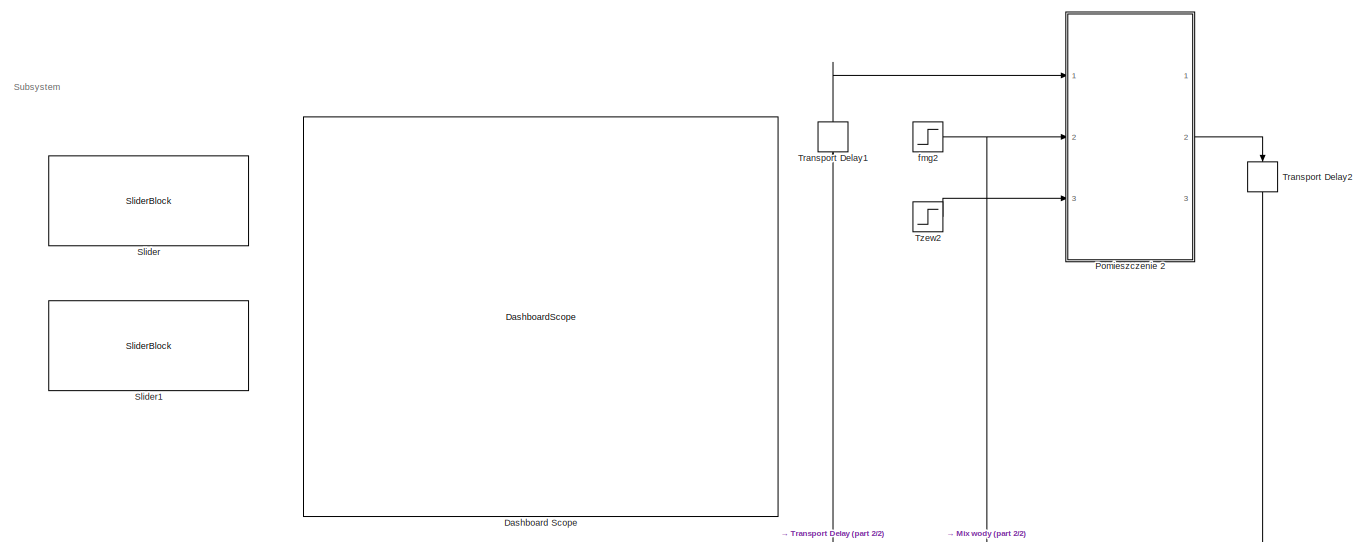
[diagram: root canvas - part 1/2, full width, top band]
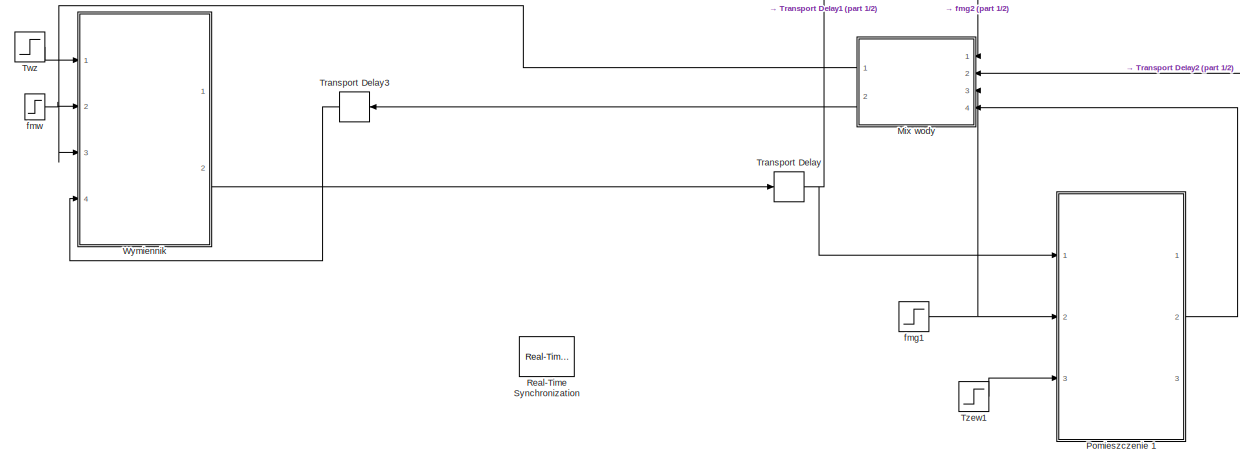
[diagram: root canvas - part 2/2, full width, bottom band]
MODEL slx_4da5ae74ee29
KIND model
CONFIG AbsTol = auto
CONFIG EnableMultiTasking = on
CONFIG FixedStep = auto
CONFIG MaxStep = auto
CONFIG MinStep = auto
CONFIG RelTol = 1e-3
CONFIG SampleTimeConstraint = Unconstrained
CONFIG Solver = ode45
CONFIG SolverName = ode45
CONFIG StartTime = 0.0
CONFIG StopTime = 10.0
BLOCK [DashboardScope] Dashboard Scope
  WebBlockId = 55
  Ymax = 50
  Ymin = 10
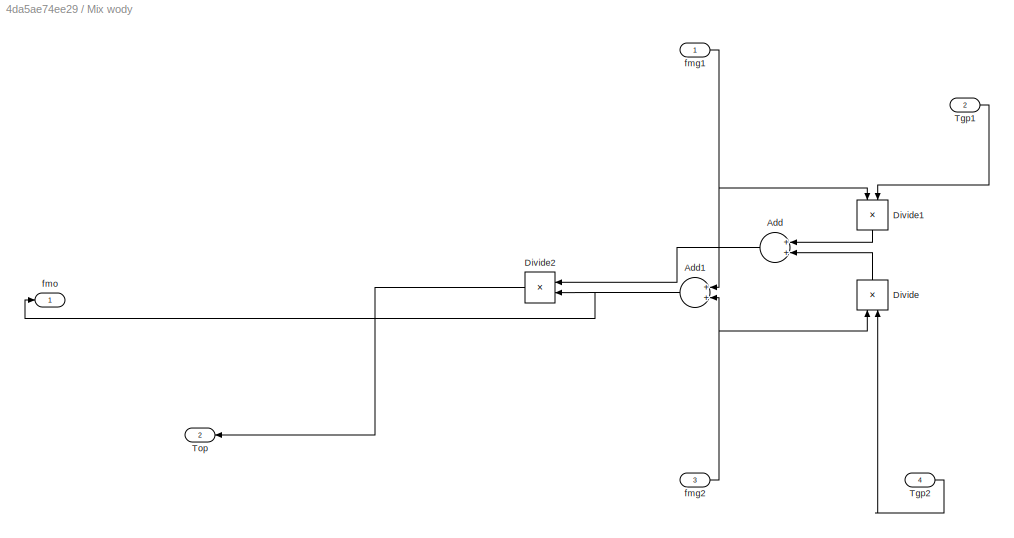
BLOCK [SubSystem] Mix wody
  Ports = [4, 2]
  RequestExecContextInheritance = off
BLOCK [Sum] Mix wody/Add
  InputSameDT = off
  OutDataTypeStr = Inherit: Inherit via internal rule
  Ports = [2, 1]
  SaturateOnIntegerOverflow = off
BLOCK [Sum] Mix wody/Add1
  InputSameDT = off
  OutDataTypeStr = Inherit: Inherit via internal rule
  Ports = [2, 1]
  SaturateOnIntegerOverflow = off
BLOCK [Product] Mix wody/Divide
  InputSameDT = off
  Inputs = **
  OutDataTypeStr = Inherit: Inherit via internal rule
  Ports = [2, 1]
  RndMeth = Floor
  SaturateOnIntegerOverflow = off
BLOCK [Product] Mix wody/Divide1
  InputSameDT = off
  Inputs = **
  OutDataTypeStr = Inherit: Inherit via internal rule
  Ports = [2, 1]
  RndMeth = Floor
  SaturateOnIntegerOverflow = off
BLOCK [Product] Mix wody/Divide2
  InputSameDT = off
  Inputs = */
  OutDataTypeStr = Inherit: Inherit via internal rule
  Ports = [2, 1]
  RndMeth = Floor
  SaturateOnIntegerOverflow = off
BLOCK [Inport] Mix wody/Tgp1
  IconDisplay = Port number
  Port = 2
BLOCK [Inport] Mix wody/Tgp2
  IconDisplay = Port number
  Port = 4
BLOCK [Outport] Mix wody/Top
  IconDisplay = Port number
  Port = 2
BLOCK [Inport] Mix wody/fmg1
  IconDisplay = Port number
BLOCK [Inport] Mix wody/fmg2
  IconDisplay = Port number
  Port = 3
BLOCK [Outport] Mix wody/fmo
  IconDisplay = Port number
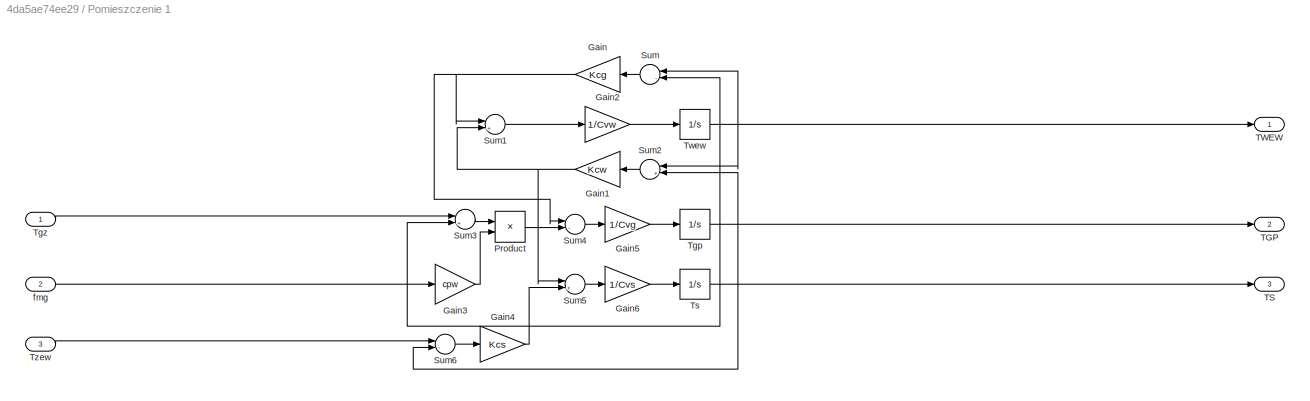
BLOCK [SubSystem] Pomieszczenie 1
  Ports = [3, 3]
  RequestExecContextInheritance = off
BLOCK [Gain] Pomieszczenie 1/Gain
  Gain = Kcg
  OutDataTypeStr = Inherit: Inherit via internal rule
  ParamDataTypeStr = Inherit: Inherit via internal rule
  SaturateOnIntegerOverflow = off
BLOCK [Gain] Pomieszczenie 1/Gain1
  Gain = Kcw
  OutDataTypeStr = Inherit: Inherit via internal rule
  ParamDataTypeStr = Inherit: Inherit via internal rule
  SaturateOnIntegerOverflow = off
BLOCK [Gain] Pomieszczenie 1/Gain2
  Gain = 1/Cvw
  OutDataTypeStr = Inherit: Inherit via internal rule
  ParamDataTypeStr = Inherit: Inherit via internal rule
  SaturateOnIntegerOverflow = off
BLOCK [Gain] Pomieszczenie 1/Gain3
  Gain = cpw
  OutDataTypeStr = Inherit: Inherit via internal rule
  ParamDataTypeStr = Inherit: Inherit via internal rule
  SaturateOnIntegerOverflow = off
BLOCK [Gain] Pomieszczenie 1/Gain4
  Gain = Kcs
  OutDataTypeStr = Inherit: Inherit via internal rule
  ParamDataTypeStr = Inherit: Inherit via internal rule
  SaturateOnIntegerOverflow = off
BLOCK [Gain] Pomieszczenie 1/Gain5
  Gain = 1/Cvg
  OutDataTypeStr = Inherit: Inherit via internal rule
  ParamDataTypeStr = Inherit: Inherit via internal rule
  SaturateOnIntegerOverflow = off
BLOCK [Gain] Pomieszczenie 1/Gain6
  Gain = 1/Cvs
  OutDataTypeStr = Inherit: Inherit via internal rule
  ParamDataTypeStr = Inherit: Inherit via internal rule
  SaturateOnIntegerOverflow = off
BLOCK [Product] Pomieszczenie 1/Product
  InputSameDT = off
  OutDataTypeStr = Inherit: Inherit via internal rule
  Ports = [2, 1]
  RndMeth = Floor
  SaturateOnIntegerOverflow = off
BLOCK [Sum] Pomieszczenie 1/Sum
  InputSameDT = off
  Inputs = |-+
  OutDataTypeStr = Inherit: Inherit via internal rule
  Ports = [2, 1]
  SaturateOnIntegerOverflow = off
BLOCK [Sum] Pomieszczenie 1/Sum1
  InputSameDT = off
  Inputs = |+-
  OutDataTypeStr = Inherit: Inherit via internal rule
  Ports = [2, 1]
  SaturateOnIntegerOverflow = off
BLOCK [Sum] Pomieszczenie 1/Sum2
  InputSameDT = off
  Inputs = |+-
  OutDataTypeStr = Inherit: Inherit via internal rule
  Ports = [2, 1]
  SaturateOnIntegerOverflow = off
BLOCK [Sum] Pomieszczenie 1/Sum3
  InputSameDT = off
  Inputs = |+-
  OutDataTypeStr = Inherit: Inherit via internal rule
  Ports = [2, 1]
  SaturateOnIntegerOverflow = off
BLOCK [Sum] Pomieszczenie 1/Sum4
  InputSameDT = off
  Inputs = |-+
  OutDataTypeStr = Inherit: Inherit via internal rule
  Ports = [2, 1]
  SaturateOnIntegerOverflow = off
BLOCK [Sum] Pomieszczenie 1/Sum5
  InputSameDT = off
  Inputs = |+-
  OutDataTypeStr = Inherit: Inherit via internal rule
  Ports = [2, 1]
  SaturateOnIntegerOverflow = off
BLOCK [Sum] Pomieszczenie 1/Sum6
  InputSameDT = off
  Inputs = |-+
  OutDataTypeStr = Inherit: Inherit via internal rule
  Ports = [2, 1]
  SaturateOnIntegerOverflow = off
BLOCK [Outport] Pomieszczenie 1/TGP
  IconDisplay = Port number
  Port = 2
BLOCK [Outport] Pomieszczenie 1/TS
  IconDisplay = Port number
  Port = 3
BLOCK [Outport] Pomieszczenie 1/TWEW
  IconDisplay = Port number
BLOCK [Integrator] Pomieszczenie 1/Tgp
  InitialCondition = Tgp0
  Ports = [1, 1]
BLOCK [Inport] Pomieszczenie 1/Tgz
  IconDisplay = Port number
BLOCK [Integrator] Pomieszczenie 1/Ts
  InitialCondition = Ts0
  Ports = [1, 1]
BLOCK [Integrator] Pomieszczenie 1/Twew
  InitialCondition = Twew0
  Ports = [1, 1]
BLOCK [Inport] Pomieszczenie 1/Tzew
  IconDisplay = Port number
  Port = 3
BLOCK [Inport] Pomieszczenie 1/fmg
  IconDisplay = Port number
  Port = 2
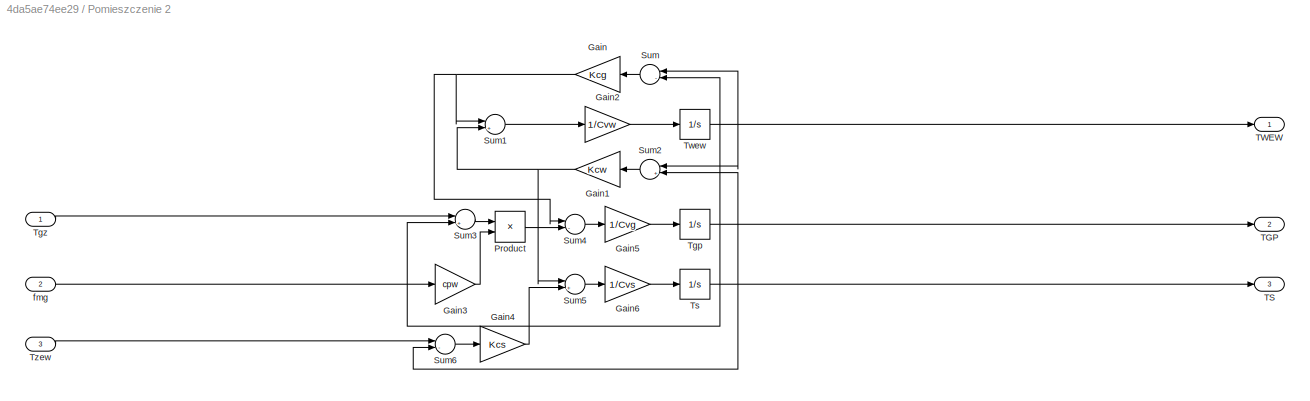
BLOCK [SubSystem] Pomieszczenie 2
  Ports = [3, 3]
  RequestExecContextInheritance = off
BLOCK [Gain] Pomieszczenie 2/Gain
  Gain = Kcg
  OutDataTypeStr = Inherit: Inherit via internal rule
  ParamDataTypeStr = Inherit: Inherit via internal rule
  SaturateOnIntegerOverflow = off
BLOCK [Gain] Pomieszczenie 2/Gain1
  Gain = Kcw
  OutDataTypeStr = Inherit: Inherit via internal rule
  ParamDataTypeStr = Inherit: Inherit via internal rule
  SaturateOnIntegerOverflow = off
BLOCK [Gain] Pomieszczenie 2/Gain2
  Gain = 1/Cvw
  OutDataTypeStr = Inherit: Inherit via internal rule
  ParamDataTypeStr = Inherit: Inherit via internal rule
  SaturateOnIntegerOverflow = off
BLOCK [Gain] Pomieszczenie 2/Gain3
  Gain = cpw
  OutDataTypeStr = Inherit: Inherit via internal rule
  ParamDataTypeStr = Inherit: Inherit via internal rule
  SaturateOnIntegerOverflow = off
BLOCK [Gain] Pomieszczenie 2/Gain4
  Gain = Kcs
  OutDataTypeStr = Inherit: Inherit via internal rule
  ParamDataTypeStr = Inherit: Inherit via internal rule
  SaturateOnIntegerOverflow = off
BLOCK [Gain] Pomieszczenie 2/Gain5
  Gain = 1/Cvg
  OutDataTypeStr = Inherit: Inherit via internal rule
  ParamDataTypeStr = Inherit: Inherit via internal rule
  SaturateOnIntegerOverflow = off
BLOCK [Gain] Pomieszczenie 2/Gain6
  Gain = 1/Cvs
  OutDataTypeStr = Inherit: Inherit via internal rule
  ParamDataTypeStr = Inherit: Inherit via internal rule
  SaturateOnIntegerOverflow = off
BLOCK [Product] Pomieszczenie 2/Product
  InputSameDT = off
  OutDataTypeStr = Inherit: Inherit via internal rule
  Ports = [2, 1]
  RndMeth = Floor
  SaturateOnIntegerOverflow = off
BLOCK [Sum] Pomieszczenie 2/Sum
  InputSameDT = off
  Inputs = |-+
  OutDataTypeStr = Inherit: Inherit via internal rule
  Ports = [2, 1]
  SaturateOnIntegerOverflow = off
BLOCK [Sum] Pomieszczenie 2/Sum1
  InputSameDT = off
  Inputs = |+-
  OutDataTypeStr = Inherit: Inherit via internal rule
  Ports = [2, 1]
  SaturateOnIntegerOverflow = off
BLOCK [Sum] Pomieszczenie 2/Sum2
  InputSameDT = off
  Inputs = |+-
  OutDataTypeStr = Inherit: Inherit via internal rule
  Ports = [2, 1]
  SaturateOnIntegerOverflow = off
BLOCK [Sum] Pomieszczenie 2/Sum3
  InputSameDT = off
  Inputs = |+-
  OutDataTypeStr = Inherit: Inherit via internal rule
  Ports = [2, 1]
  SaturateOnIntegerOverflow = off
BLOCK [Sum] Pomieszczenie 2/Sum4
  InputSameDT = off
  Inputs = |-+
  OutDataTypeStr = Inherit: Inherit via internal rule
  Ports = [2, 1]
  SaturateOnIntegerOverflow = off
BLOCK [Sum] Pomieszczenie 2/Sum5
  InputSameDT = off
  Inputs = |+-
  OutDataTypeStr = Inherit: Inherit via internal rule
  Ports = [2, 1]
  SaturateOnIntegerOverflow = off
BLOCK [Sum] Pomieszczenie 2/Sum6
  InputSameDT = off
  Inputs = |-+
  OutDataTypeStr = Inherit: Inherit via internal rule
  Ports = [2, 1]
  SaturateOnIntegerOverflow = off
BLOCK [Outport] Pomieszczenie 2/TGP
  IconDisplay = Port number
  Port = 2
BLOCK [Outport] Pomieszczenie 2/TS
  IconDisplay = Port number
  Port = 3
BLOCK [Outport] Pomieszczenie 2/TWEW
  IconDisplay = Port number
BLOCK [Integrator] Pomieszczenie 2/Tgp
  InitialCondition = Tgp0
  Ports = [1, 1]
BLOCK [Inport] Pomieszczenie 2/Tgz
  IconDisplay = Port number
BLOCK [Integrator] Pomieszczenie 2/Ts
  InitialCondition = Ts0
  Ports = [1, 1]
BLOCK [Integrator] Pomieszczenie 2/Twew
  InitialCondition = Twew0
  Ports = [1, 1]
BLOCK [Inport] Pomieszczenie 2/Tzew
  IconDisplay = Port number
  Port = 3
BLOCK [Inport] Pomieszczenie 2/fmg
  IconDisplay = Port number
  Port = 2
BLOCK [Reference] Real-Time Synchronization  REF=sldrtlib/Real-Time
Synchronization
  Commented = on
  Ports = []
  SourceBlock = sldrtlib/Real-Time\nSynchronization
  SourceProductBaseCode = WT
  SourceProductName = Simulink Desktop Real-Time
  SourceType = Simulink Desktop Real-Time Synchronization
BLOCK [SliderBlock] Slider
  ScaleMax = 30
  ScaleMin = -20
  WebBlockId = 118
BLOCK [SliderBlock] Slider1
  ScaleMax = 130
  ScaleMin = 100
  WebBlockId = 119
BLOCK [TransportDelay] Transport Delay
  DelayTime = Tdelay1
  InitialOutput = Toz0
  Ports = [1, 1]
BLOCK [TransportDelay] Transport Delay1
  DelayTime = Tdelay2
  InitialOutput = Toz0
  Ports = [1, 1]
BLOCK [TransportDelay] Transport Delay2
  DelayTime = Tdelay2
  InitialOutput = Tgp2_0
  Ports = [1, 1]
BLOCK [TransportDelay] Transport Delay3
  DelayTime = Tdelay1
  InitialOutput = (Tgp1_0*fmg1_0+Tgp2_0*fmg2_0)/(fmg1_0+fmg2_0)
  Ports = [1, 1]
BLOCK [Step] Twz
  After = Twz0+dTwz
  Before = Twz0
  SampleTime = 0
  Time = steptime
BLOCK [Step] Tzew1
  After = Tzew0+dTzew
  Before = Tzew0
  SampleTime = 0
  Time = steptime
BLOCK [Step] Tzew2
  After = Tzew0+dTzew
  Before = Tzew0
  SampleTime = 0
  Time = steptime
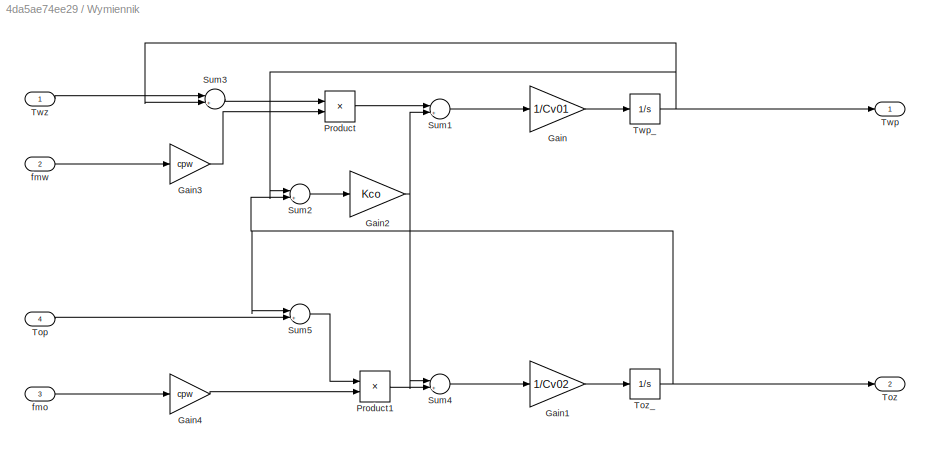
BLOCK [SubSystem] Wymiennik
  Ports = [4, 2]
  RequestExecContextInheritance = off
BLOCK [Gain] Wymiennik/Gain
  Gain = 1/Cv01
  OutDataTypeStr = Inherit: Inherit via internal rule
  ParamDataTypeStr = Inherit: Inherit via internal rule
  SaturateOnIntegerOverflow = off
BLOCK [Gain] Wymiennik/Gain1
  Gain = 1/Cv02
  OutDataTypeStr = Inherit: Inherit via internal rule
  ParamDataTypeStr = Inherit: Inherit via internal rule
  SaturateOnIntegerOverflow = off
BLOCK [Gain] Wymiennik/Gain2
  Gain = Kco
  OutDataTypeStr = Inherit: Inherit via internal rule
  ParamDataTypeStr = Inherit: Inherit via internal rule
  SaturateOnIntegerOverflow = off
BLOCK [Gain] Wymiennik/Gain3
  Gain = cpw
  OutDataTypeStr = Inherit: Inherit via internal rule
  ParamDataTypeStr = Inherit: Inherit via internal rule
  SaturateOnIntegerOverflow = off
BLOCK [Gain] Wymiennik/Gain4
  Gain = cpw
  OutDataTypeStr = Inherit: Inherit via internal rule
  ParamDataTypeStr = Inherit: Inherit via internal rule
  SaturateOnIntegerOverflow = off
BLOCK [Product] Wymiennik/Product
  InputSameDT = off
  OutDataTypeStr = Inherit: Inherit via internal rule
  Ports = [2, 1]
  RndMeth = Floor
  SaturateOnIntegerOverflow = off
BLOCK [Product] Wymiennik/Product1
  InputSameDT = off
  OutDataTypeStr = Inherit: Inherit via internal rule
  Ports = [2, 1]
  RndMeth = Floor
  SaturateOnIntegerOverflow = off
BLOCK [Sum] Wymiennik/Sum1
  InputSameDT = off
  Inputs = |+-
  OutDataTypeStr = Inherit: Inherit via internal rule
  Ports = [2, 1]
  SaturateOnIntegerOverflow = off
BLOCK [Sum] Wymiennik/Sum2
  InputSameDT = off
  Inputs = |+-
  OutDataTypeStr = Inherit: Inherit via internal rule
  Ports = [2, 1]
  SaturateOnIntegerOverflow = off
BLOCK [Sum] Wymiennik/Sum3
  InputSameDT = off
  Inputs = |+-
  OutDataTypeStr = Inherit: Inherit via internal rule
  Ports = [2, 1]
  SaturateOnIntegerOverflow = off
BLOCK [Sum] Wymiennik/Sum4
  InputSameDT = off
  Inputs = |+-
  OutDataTypeStr = Inherit: Inherit via internal rule
  Ports = [2, 1]
  SaturateOnIntegerOverflow = off
BLOCK [Sum] Wymiennik/Sum5
  InputSameDT = off
  Inputs = |+-
  OutDataTypeStr = Inherit: Inherit via internal rule
  Ports = [2, 1]
  SaturateOnIntegerOverflow = off
BLOCK [Inport] Wymiennik/Top
  IconDisplay = Port number
  Port = 4
BLOCK [Outport] Wymiennik/Toz
  IconDisplay = Port number
  Port = 2
BLOCK [Integrator] Wymiennik/Toz_
  InitialCondition = Toz0
  Ports = [1, 1]
BLOCK [Outport] Wymiennik/Twp
  IconDisplay = Port number
BLOCK [Integrator] Wymiennik/Twp_
  InitialCondition = Twp0
  Ports = [1, 1]
BLOCK [Inport] Wymiennik/Twz
  IconDisplay = Port number
BLOCK [Inport] Wymiennik/fmo
  IconDisplay = Port number
  Port = 3
BLOCK [Inport] Wymiennik/fmw
  IconDisplay = Port number
  Port = 2
BLOCK [Step] fmg1
  After = fmg1_0
  Before = fmg1_0
  SampleTime = 0
  Time = steptime
BLOCK [Step] fmg2
  After = fmg2_0
  Before = fmg2_0
  SampleTime = 0
  Time = steptime
BLOCK [Step] fmw
  After = fmw0+dfmw
  Before = fmw0
  SampleTime = 0
  Time = steptime
ANNOTATION (root): Subsystem
NET Mix wody/Add1:1 -> Mix wody/Divide2:2, Mix wody/fmo:1
LINE Mix wody/Add:1 -> Mix wody/Divide2:1
LINE Mix wody/Divide1:1 -> Mix wody/Add:1
LINE Mix wody/Divide2:1 -> Mix wody/Top:1
LINE Mix wody/Divide:1 -> Mix wody/Add:2
LINE Mix wody/Tgp1:1 -> Mix wody/Divide1:2
LINE Mix wody/Tgp2:1 -> Mix wody/Divide:2
NET Mix wody/fmg1:1 -> Mix wody/Add1:1, Mix wody/Divide1:1
NET Mix wody/fmg2:1 -> Mix wody/Add1:2, Mix wody/Divide:1
LINE Mix wody:1 -> Wymiennik:3
LINE Mix wody:2 -> Transport Delay3:1
NET Pomieszczenie 1/Gain1:1 -> Pomieszczenie 1/Sum1:2, Pomieszczenie 1/Sum5:1
LINE Pomieszczenie 1/Gain2:1 -> Pomieszczenie 1/Twew:1
LINE Pomieszczenie 1/Gain3:1 -> Pomieszczenie 1/Product:2
LINE Pomieszczenie 1/Gain4:1 -> Pomieszczenie 1/Sum5:2
LINE Pomieszczenie 1/Gain5:1 -> Pomieszczenie 1/Tgp:1
LINE Pomieszczenie 1/Gain6:1 -> Pomieszczenie 1/Ts:1
NET Pomieszczenie 1/Gain:1 -> Pomieszczenie 1/Sum1:1, Pomieszczenie 1/Sum4:1
LINE Pomieszczenie 1/Product:1 -> Pomieszczenie 1/Sum4:2
LINE Pomieszczenie 1/Sum1:1 -> Pomieszczenie 1/Gain2:1
LINE Pomieszczenie 1/Sum2:1 -> Pomieszczenie 1/Gain1:1
LINE Pomieszczenie 1/Sum3:1 -> Pomieszczenie 1/Product:1
LINE Pomieszczenie 1/Sum4:1 -> Pomieszczenie 1/Gain5:1
LINE Pomieszczenie 1/Sum5:1 -> Pomieszczenie 1/Gain6:1
LINE Pomieszczenie 1/Sum6:1 -> Pomieszczenie 1/Gain4:1
LINE Pomieszczenie 1/Sum:1 -> Pomieszczenie 1/Gain:1
NET Pomieszczenie 1/Tgp:1 -> Pomieszczenie 1/Sum3:2, Pomieszczenie 1/Sum:2, Pomieszczenie 1/TGP:1
LINE Pomieszczenie 1/Tgz:1 -> Pomieszczenie 1/Sum3:1
NET Pomieszczenie 1/Ts:1 -> Pomieszczenie 1/Sum2:2, Pomieszczenie 1/Sum6:2, Pomieszczenie 1/TS:1
NET Pomieszczenie 1/Twew:1 -> Pomieszczenie 1/Sum2:1, Pomieszczenie 1/Sum:1, Pomieszczenie 1/TWEW:1
LINE Pomieszczenie 1/Tzew:1 -> Pomieszczenie 1/Sum6:1
LINE Pomieszczenie 1/fmg:1 -> Pomieszczenie 1/Gain3:1
LINE Pomieszczenie 1:2 -> Mix wody:4
NET Pomieszczenie 2/Gain1:1 -> Pomieszczenie 2/Sum1:2, Pomieszczenie 2/Sum5:1
LINE Pomieszczenie 2/Gain2:1 -> Pomieszczenie 2/Twew:1
LINE Pomieszczenie 2/Gain3:1 -> Pomieszczenie 2/Product:2
LINE Pomieszczenie 2/Gain4:1 -> Pomieszczenie 2/Sum5:2
LINE Pomieszczenie 2/Gain5:1 -> Pomieszczenie 2/Tgp:1
LINE Pomieszczenie 2/Gain6:1 -> Pomieszczenie 2/Ts:1
NET Pomieszczenie 2/Gain:1 -> Pomieszczenie 2/Sum1:1, Pomieszczenie 2/Sum4:1
LINE Pomieszczenie 2/Product:1 -> Pomieszczenie 2/Sum4:2
LINE Pomieszczenie 2/Sum1:1 -> Pomieszczenie 2/Gain2:1
LINE Pomieszczenie 2/Sum2:1 -> Pomieszczenie 2/Gain1:1
LINE Pomieszczenie 2/Sum3:1 -> Pomieszczenie 2/Product:1
LINE Pomieszczenie 2/Sum4:1 -> Pomieszczenie 2/Gain5:1
LINE Pomieszczenie 2/Sum5:1 -> Pomieszczenie 2/Gain6:1
LINE Pomieszczenie 2/Sum6:1 -> Pomieszczenie 2/Gain4:1
LINE Pomieszczenie 2/Sum:1 -> Pomieszczenie 2/Gain:1
NET Pomieszczenie 2/Tgp:1 -> Pomieszczenie 2/Sum3:2, Pomieszczenie 2/Sum:2, Pomieszczenie 2/TGP:1
LINE Pomieszczenie 2/Tgz:1 -> Pomieszczenie 2/Sum3:1
NET Pomieszczenie 2/Ts:1 -> Pomieszczenie 2/Sum2:2, Pomieszczenie 2/Sum6:2, Pomieszczenie 2/TS:1
NET Pomieszczenie 2/Twew:1 -> Pomieszczenie 2/Sum2:1, Pomieszczenie 2/Sum:1, Pomieszczenie 2/TWEW:1
LINE Pomieszczenie 2/Tzew:1 -> Pomieszczenie 2/Sum6:1
LINE Pomieszczenie 2/fmg:1 -> Pomieszczenie 2/Gain3:1
LINE Pomieszczenie 2:2 -> Transport Delay2:1
LINE Transport Delay1:1 -> Pomieszczenie 2:1
LINE Transport Delay2:1 -> Mix wody:2
LINE Transport Delay3:1 -> Wymiennik:4
NET Transport Delay:1 -> Pomieszczenie 1:1, Transport Delay1:1
LINE Twz:1 -> Wymiennik:1
LINE Tzew1:1 -> Pomieszczenie 1:3
LINE Tzew2:1 -> Pomieszczenie 2:3
LINE Wymiennik/Gain1:1 -> Wymiennik/Toz_:1
NET Wymiennik/Gain2:1 -> Wymiennik/Sum1:2, Wymiennik/Sum4:1
LINE Wymiennik/Gain3:1 -> Wymiennik/Product:2
LINE Wymiennik/Gain4:1 -> Wymiennik/Product1:2
LINE Wymiennik/Gain:1 -> Wymiennik/Twp_:1
LINE Wymiennik/Product1:1 -> Wymiennik/Sum4:2
LINE Wymiennik/Product:1 -> Wymiennik/Sum1:1
LINE Wymiennik/Sum1:1 -> Wymiennik/Gain:1
LINE Wymiennik/Sum2:1 -> Wymiennik/Gain2:1
LINE Wymiennik/Sum3:1 -> Wymiennik/Product:1
LINE Wymiennik/Sum4:1 -> Wymiennik/Gain1:1
LINE Wymiennik/Sum5:1 -> Wymiennik/Product1:1
LINE Wymiennik/Top:1 -> Wymiennik/Sum5:2
NET Wymiennik/Toz_:1 -> Wymiennik/Sum2:2, Wymiennik/Sum5:1, Wymiennik/Toz:1
NET Wymiennik/Twp_:1 -> Wymiennik/Sum2:1, Wymiennik/Sum3:2, Wymiennik/Twp:1
LINE Wymiennik/Twz:1 -> Wymiennik/Sum3:1
LINE Wymiennik/fmo:1 -> Wymiennik/Gain4:1
LINE Wymiennik/fmw:1 -> Wymiennik/Gain3:1
LINE Wymiennik:2 -> Transport Delay:1
NET fmg1:1 -> Mix wody:3, Pomieszczenie 1:2
NET fmg2:1 -> Mix wody:1, Pomieszczenie 2:2
LINE fmw:1 -> Wymiennik:2
note: NET lines group one-source signal fan-out (src -> all destinations, sorted); 1:1 wires keep LINE
